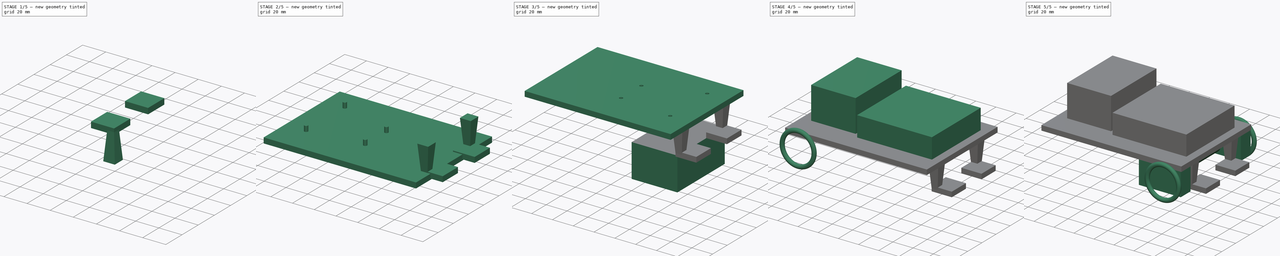
[diagram: build sequence overview — one tinted view per stage of 5, left to right]
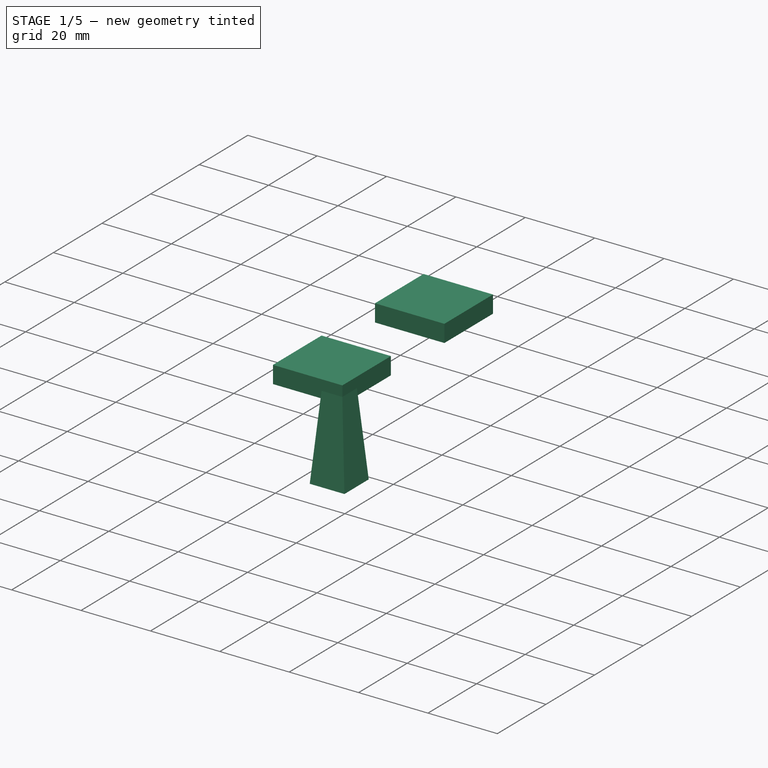
[diagram: stage 1 of 5 — iso view after this stage's code; geometry added in this stage tinted green]
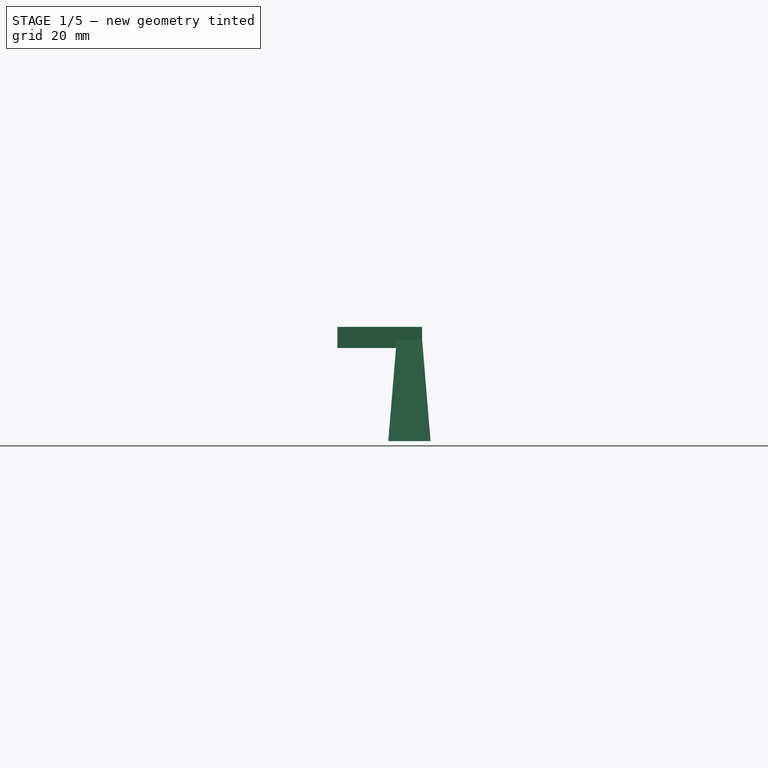
[diagram: stage 1 of 5 — front view after this stage's code; geometry added in this stage tinted green]
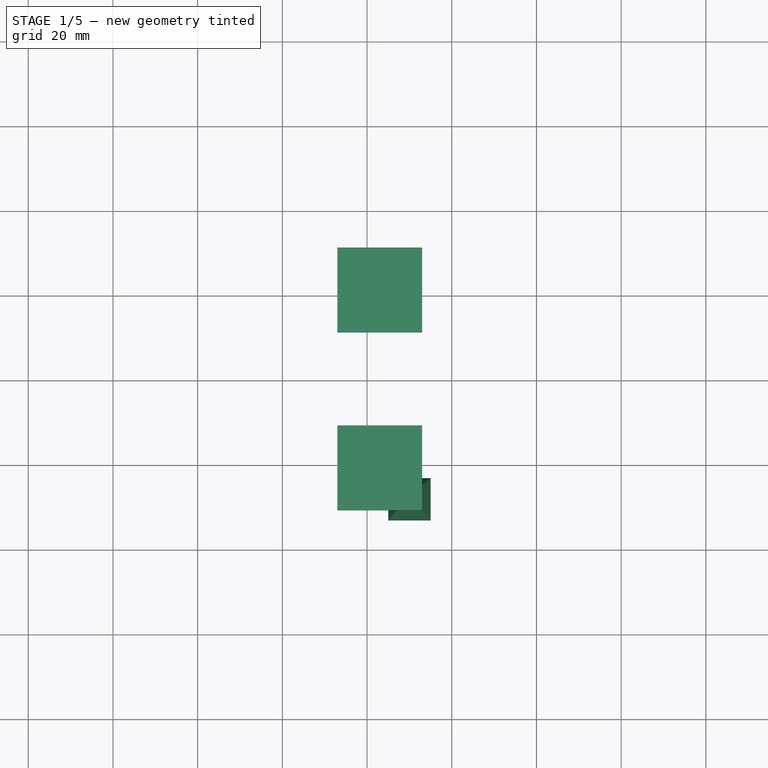
[diagram: stage 1 of 5 — top view after this stage's code; geometry added in this stage tinted green]
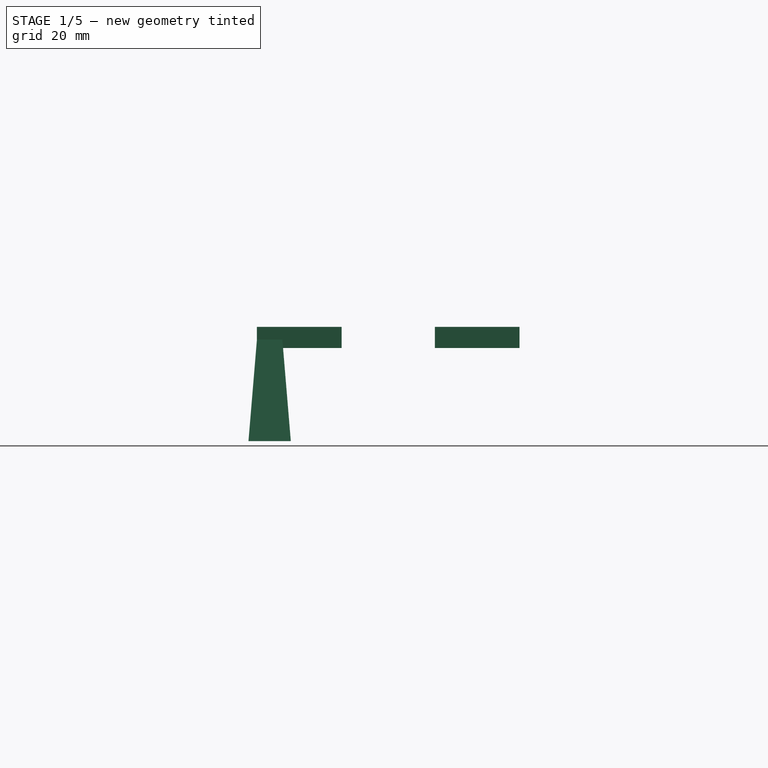
[diagram: stage 1 of 5 — right view after this stage's code; geometry added in this stage tinted green]
FCSTD DOCUMENT  (FreeCAD 0.16R6712 (Git))
Label: proyecto esbozo
License: All rights reserved
LicenseURL: http://en.wikipedia.org/wiki/All_rights_reserved
objects: Part::MultiFuse×7, Sketcher::SketchObject×4, PartDesign::Pad×4, Part::Box×4, App::DocumentObjectGroup×3, Part::Torus×2, Part::Wedge×2, Part::Mirroring×1, Part::Cone×1, Part::Cut×1
note: 30 computed .brp shape members not serialized (recipe doc carries the construction recipe); baked Part::Feature solids carry a one-line shape summary decoded from their .brp

FEATURE [Part::Box] Box  label="Cubo"
  Height = 5
  Length = 20
  Placement = pos=(-27,11,24) rot=(0,0,1;0rad)
  Width = 20
FEATURE [Part::Wedge] Wedge002  label="Cuña002"
  Placement = pos=(-15,33,2) rot=(1,0,0;1.5708rad)
  X2max = 8
  X2min = 2
  Xmax = 10
  Xmin = 0
  Ymax = 24
  Ymin = 0
  Z2max = 8
  Z2min = 2
  Zmax = 10
  Zmin = 0
FEATURE [Part::Box] Box001  label="Cubo001"
  Height = 5
  Length = 20
  Placement = pos=(-27,25,24) rot=(0,0,1;0rad)
  Width = 20
FEATURE [Part::MultiFuse] Fusion002
  Placement = pos=(0,-56,0) rot=(0,0,1;0rad)
  Shapes = -> [Wedge002,Box001]
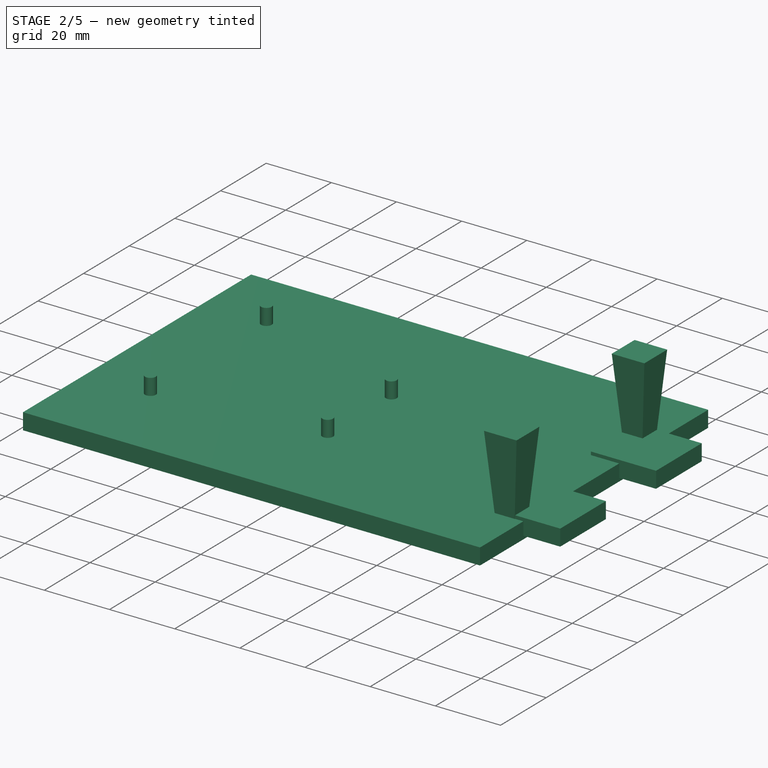
[diagram: stage 2 of 5 — iso view after this stage's code; geometry added in this stage tinted green]
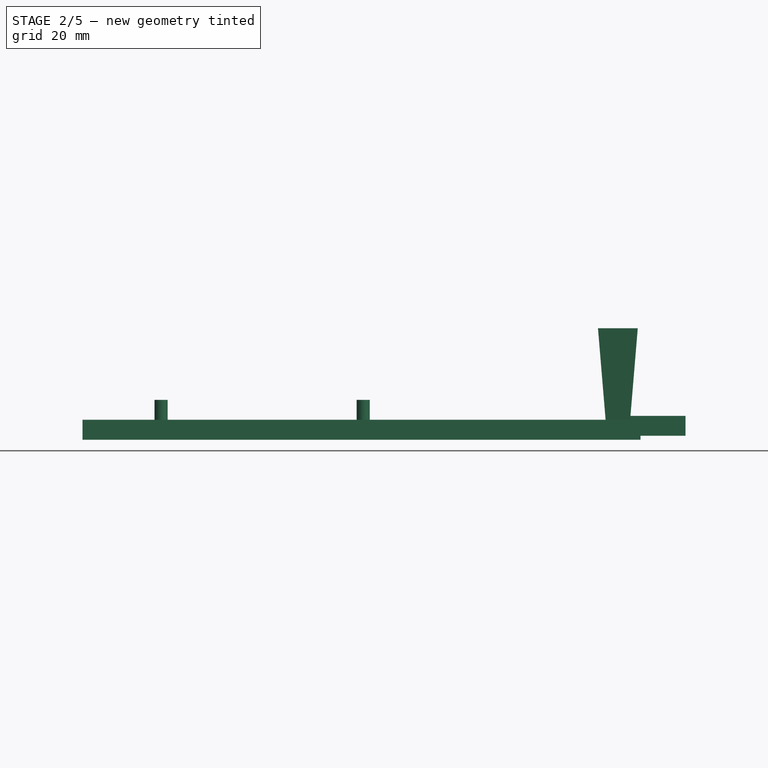
[diagram: stage 2 of 5 — front view after this stage's code; geometry added in this stage tinted green]
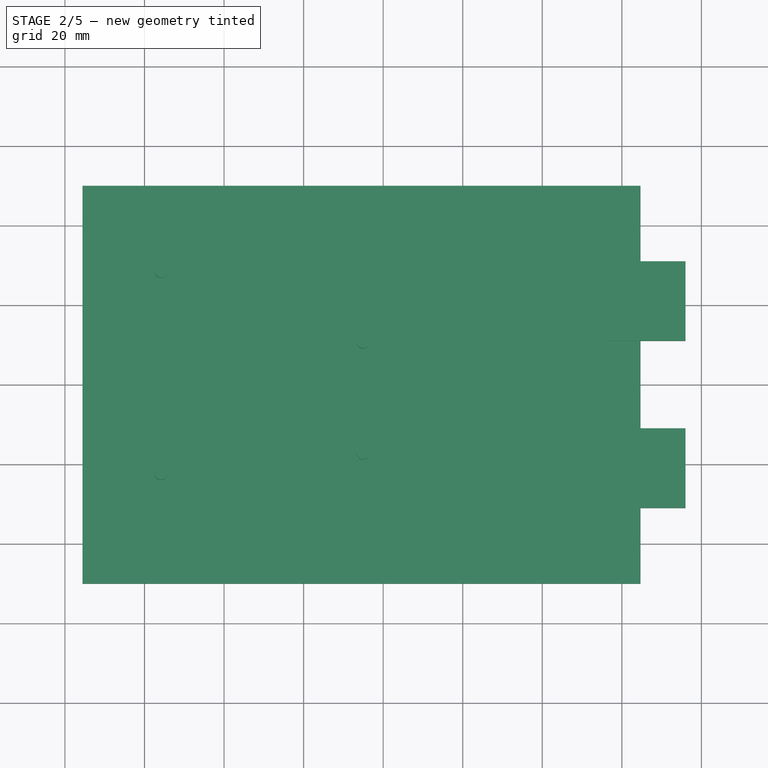
[diagram: stage 2 of 5 — top view after this stage's code; geometry added in this stage tinted green]
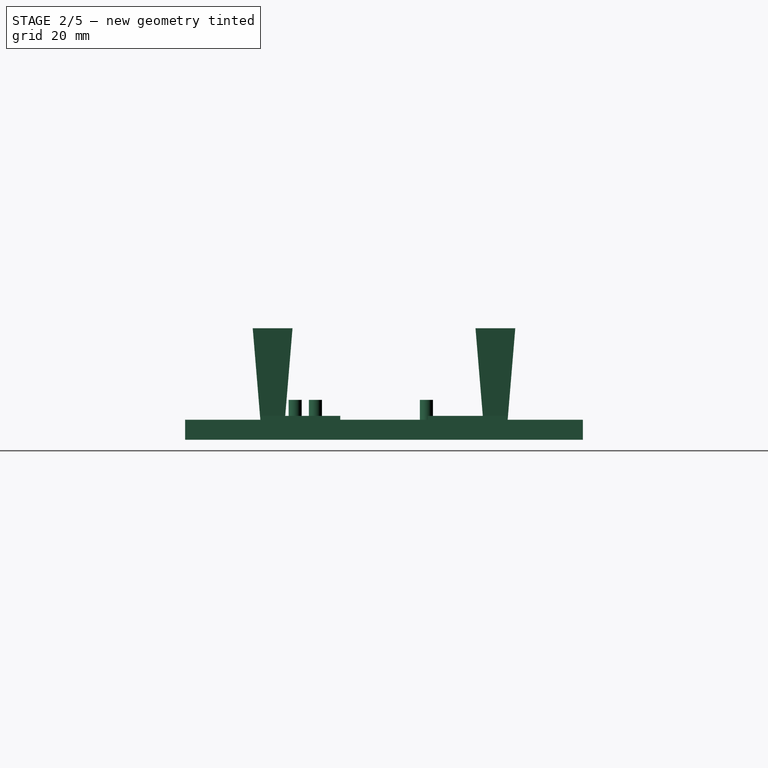
[diagram: stage 2 of 5 — right view after this stage's code; geometry added in this stage tinted green]
FEATURE [PartDesign::Pad] Pad003
  Length = 5
  Length2 = 100
  Sketch = -> Sketch001
  Type = 0
FEATURE [PartDesign::Pad] Pad
  Length = 10
  Length2 = 100
  Sketch = -> Sketch
  Type = 0
FEATURE [Part::Wedge] Wedge001  label="Cuña001"
  Placement = pos=(-15,33,2) rot=(1,0,0;1.5708rad)
  X2max = 8
  X2min = 2
  Xmax = 10
  Xmin = 0
  Ymax = 24
  Ymin = 0
  Z2max = 8
  Z2min = 2
  Zmax = 10
  Zmin = 0
FEATURE [Part::MultiFuse] Fusion001
  Shapes = -> [Wedge001,Box]
FEATURE [Part::MultiFuse] Fusion009  label="portasensores"
  Placement = pos=(109,0,30) rot=(0,1,0;3.14159rad)
  Shapes = -> [Fusion002,Fusion001]
FEATURE [App::DocumentObjectGroup] Grupo002  label="Cuerpo esquema"
  Group = -> [Fusion008,Fusion009]
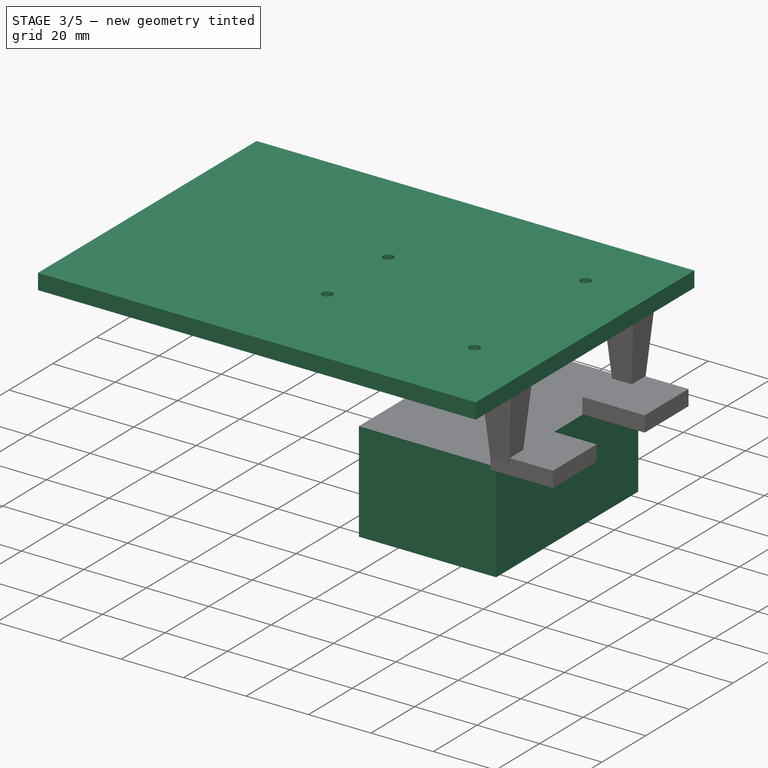
[diagram: stage 3 of 5 — iso view after this stage's code; geometry added in this stage tinted green]
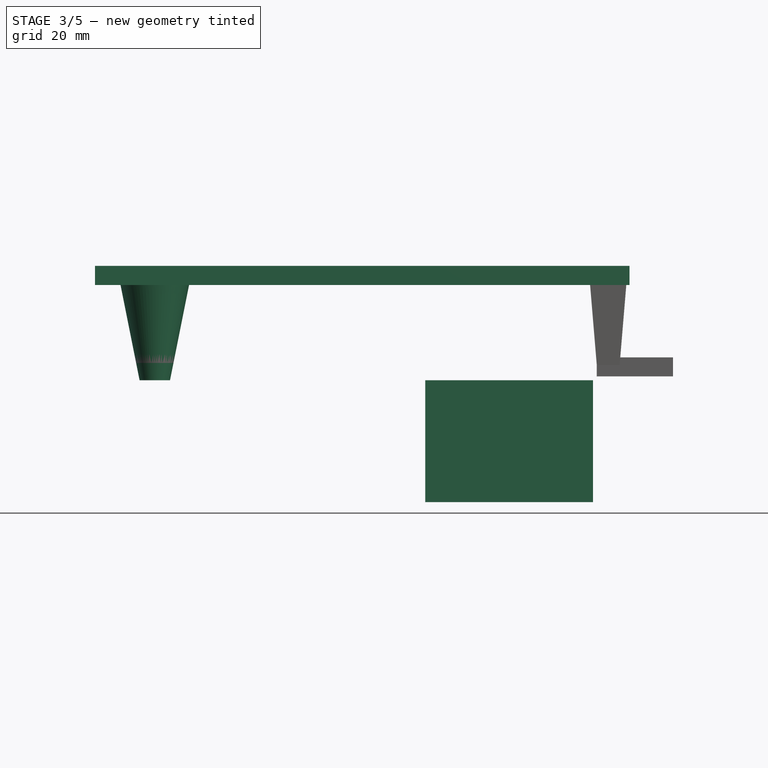
[diagram: stage 3 of 5 — front view after this stage's code; geometry added in this stage tinted green]
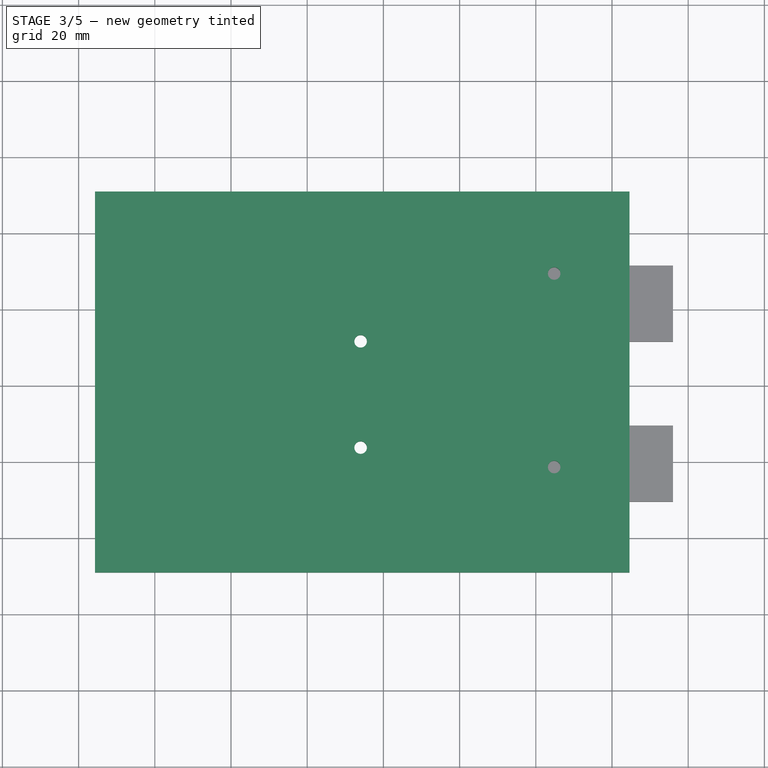
[diagram: stage 3 of 5 — top view after this stage's code; geometry added in this stage tinted green]
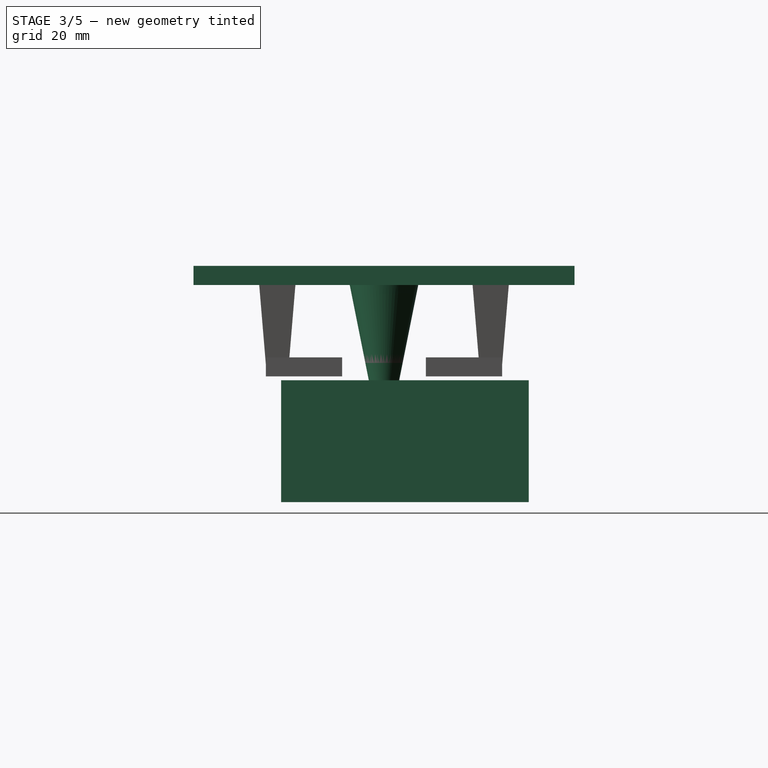
[diagram: stage 3 of 5 — right view after this stage's code; geometry added in this stage tinted green]
FEATURE [Part::Cone] Cone  label="Cono"
  Angle = 360
  Height = 30
  Placement = pos=(109,0,0) rot=(0,0,1;0rad)
  Radius1 = 10
  Radius2 = 4
FEATURE [Part::Cut] Cut
  Base = -> Pad003
  Tool = -> Pad
FEATURE [Part::Box] Box003  label="Cubo003"
  Height = 32
  Length = 44
  Placement = pos=(71,-27,-32) rot=(0,0,1;0rad)
  Width = 65
FEATURE [App::DocumentObjectGroup] Grupo001  label="voumen de la placa"
  Group = -> [Fusion006]
FEATURE [Part::MultiFuse] Fusion008  label="placa"
  Placement = pos=(109,0,30) rot=(0,1,0;3.14159rad)
  Shapes = -> [Cone,Cut]
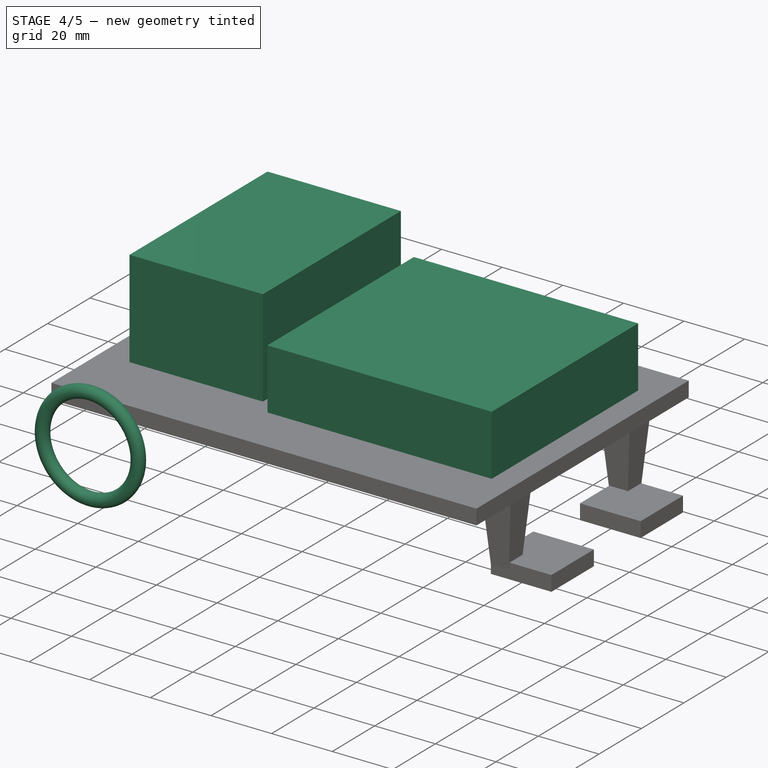
[diagram: stage 4 of 5 — iso view after this stage's code; geometry added in this stage tinted green]
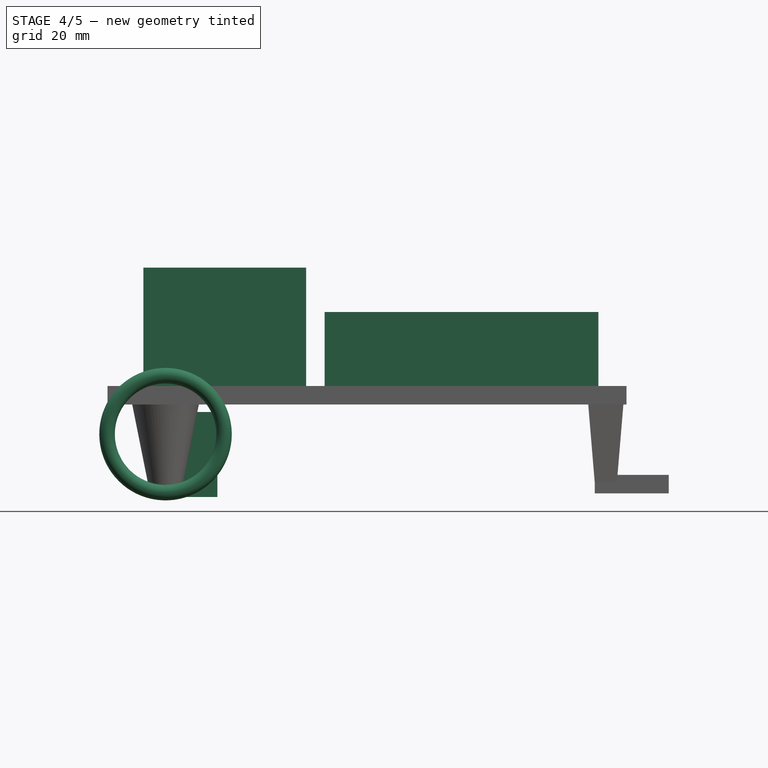
[diagram: stage 4 of 5 — front view after this stage's code; geometry added in this stage tinted green]
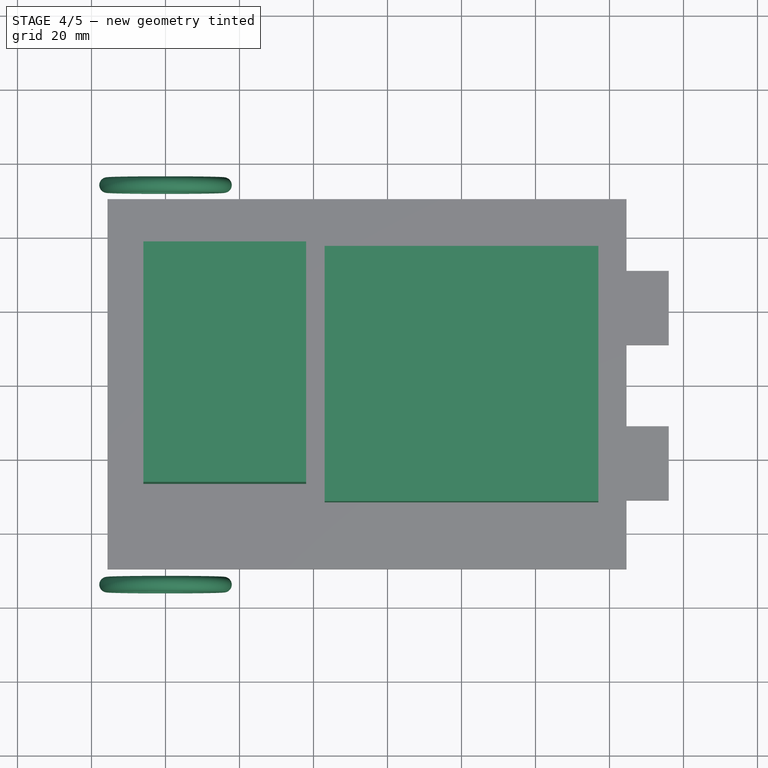
[diagram: stage 4 of 5 — top view after this stage's code; geometry added in this stage tinted green]
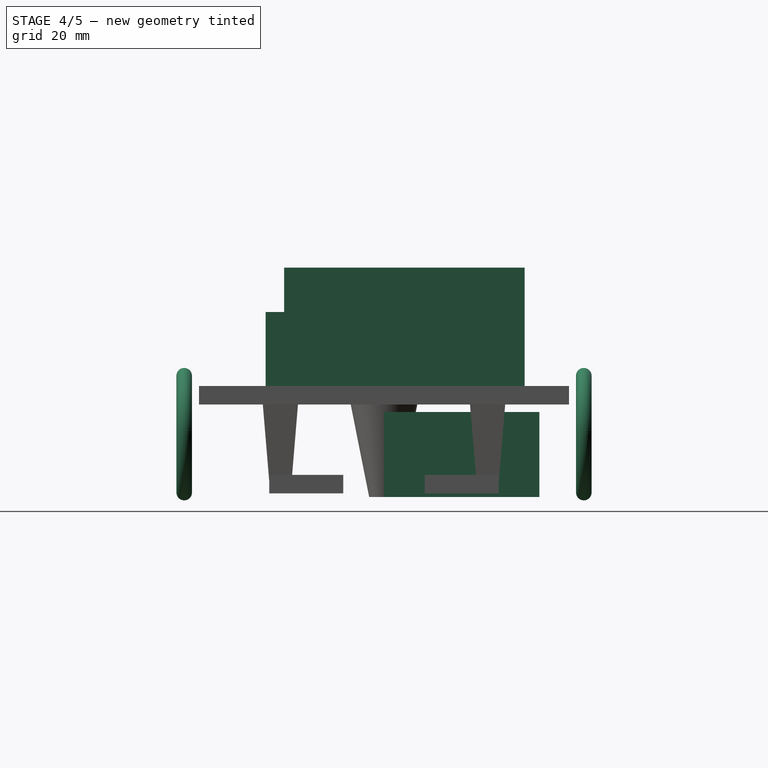
[diagram: stage 4 of 5 — right view after this stage's code; geometry added in this stage tinted green]
FEATURE [Sketcher::SketchObject] Sketch
  sketch-geometry (9):
    g0: LineSegment [constr] StartX=54.9803 StartY=28.4735 StartZ=0 EndX=4.18032 EndY=28.4735 EndZ=0
    g1: LineSegment [constr] StartX=4.18032 StartY=28.4735 StartZ=0 EndX=4.18032 EndY=-22.3265 EndZ=0
    g2: LineSegment [constr] StartX=4.18032 StartY=-22.3265 StartZ=0 EndX=54.9803 EndY=-22.3265 EndZ=0
    g3: LineSegment [constr] StartX=54.9803 StartY=-22.3265 StartZ=0 EndX=54.9803 EndY=28.4735 EndZ=0
    g4: Circle CenterX=4.18032 CenterY=-22.3265 CenterZ=0 NormalX=0 NormalY=0 NormalZ=1 Radius=1.65
    g5: Circle CenterX=4.18032 CenterY=28.4735 CenterZ=0 NormalX=0 NormalY=0 NormalZ=1 Radius=1.65
    g6: Circle CenterX=54.9803 CenterY=-17.2265 CenterZ=0 NormalX=0 NormalY=0 NormalZ=1 Radius=1.65
    g7: Circle CenterX=54.9803 CenterY=10.6735 CenterZ=0 NormalX=0 NormalY=0 NormalZ=1 Radius=1.65
    g8: LineSegment [constr] StartX=54.9803 StartY=10.6735 StartZ=0 EndX=54.9803 EndY=-17.2265 EndZ=0
  constraints (25):
    c: Coincident(g0,g1)
    c: Coincident(g1,g2)
    c: Coincident(g2,g3)
    c: Coincident(g3,g0)
    c: Horizontal(g0)
    c: Horizontal(g2)
    c: Vertical(g3)
    c: Equal(g1,g3)
    c: Equal(g0,g2)
    c: Equal(g0,g1)
    c: Distance(g0) = 50.8
    c: Coincident(g5,g0)
    c: Coincident(g4,g1)
    c: Radius(g4) = 1.65
    c: Radius(g5) = 1.65
    c: Vertical(g8)
    c: PointOnObject(g7,g8)
    c: PointOnObject(g6,g8)
    c: Coincident(g8,g7)
    c: Coincident(g6,g8)
    c: Distance(g8) = 27.9
    c: Distance(g6,g2) = 5.1
    c: Radius(g7) = 1.65
    c: Radius(g6) = 1.65
    c: PointOnObject(g7,g3)
FEATURE [Sketcher::SketchObject] Sketch001
  sketch-geometry (4):
    g0: LineSegment StartX=124.686 StartY=50 StartZ=0 EndX=-15.5795 EndY=50 EndZ=0
    g1: LineSegment StartX=-15.5795 StartY=50 StartZ=0 EndX=-15.5795 EndY=-50 EndZ=0
    g2: LineSegment StartX=-15.5795 StartY=-50 StartZ=0 EndX=124.686 EndY=-50 EndZ=0
    g3: LineSegment StartX=124.686 StartY=-50 StartZ=0 EndX=124.686 EndY=50 EndZ=0
  constraints (10):
    c: Coincident(g0,g1)
    c: Coincident(g1,g2)
    c: Coincident(g2,g3)
    c: Coincident(g3,g0)
    c: Horizontal(g0)
    c: Horizontal(g2)
    c: Vertical(g1)
    c: Vertical(g3)
    c: Symmetric(g0,g1,g-1)
    c: DistanceY(g1,g1) = 100
FEATURE [Sketcher::SketchObject] Sketch002
  sketch-geometry (4):
    g0: LineSegment StartX=0 StartY=0 StartZ=0 EndX=0 EndY=42 EndZ=0
    g1: LineSegment StartX=0 StartY=42 StartZ=0 EndX=14 EndY=42 EndZ=0
    g2: LineSegment StartX=14 StartY=42 StartZ=0 EndX=14 EndY=0 EndZ=0
    g3: LineSegment StartX=0 StartY=0 StartZ=0 EndX=14 EndY=0 EndZ=0
  constraints (12):
    c: Vertical(g0)
    c: PointOnObject(g0,g-2)
    c: Distance(g0) = 42
    c: Horizontal(g1)
    c: Coincident(g1,g2)
    c: Vertical(g2)
    c: Distance(g2,g0) = 14
    c: Coincident(g3,g2)
    c: Horizontal(g3)
    c: Coincident(g1,g0)
    c: Coincident(g3,g0)
    c: Coincident(g0,g-1)
FEATURE [PartDesign::Pad] Pad001
  Length = 23
  Length2 = 100
  Sketch = -> Sketch002
  Type = 0
FEATURE [Part::Torus] Torus  label="Toro"
  Angle1 = -180
  Angle2 = 180
  Angle3 = 360
  Placement = pos=(0,54,17) rot=(1,0,0;1.5708rad)
  Radius1 = 15.8
  Radius2 = 2.1
FEATURE [Part::Torus] Torus001  label="Toro001"
  Angle1 = -180
  Angle2 = 180
  Angle3 = 360
  Placement = pos=(0,-54,17) rot=(1,0,0;1.5708rad)
  Radius1 = 15.8
  Radius2 = 2.1
FEATURE [Part::Box] Box002  label="Cubo002"
  Height = 22
  Length = 74
  Placement = pos=(-8,-32,-20) rot=(0,0,1;0rad)
  Width = 69
FEATURE [App::DocumentObjectGroup] Grupo  label="motor"
  Group = -> [Fusion004]
FEATURE [Part::MultiFuse] Fusion006
  Placement = pos=(109,0,30) rot=(0,1,0;3.14159rad)
  Shapes = -> [Box003,Box002]
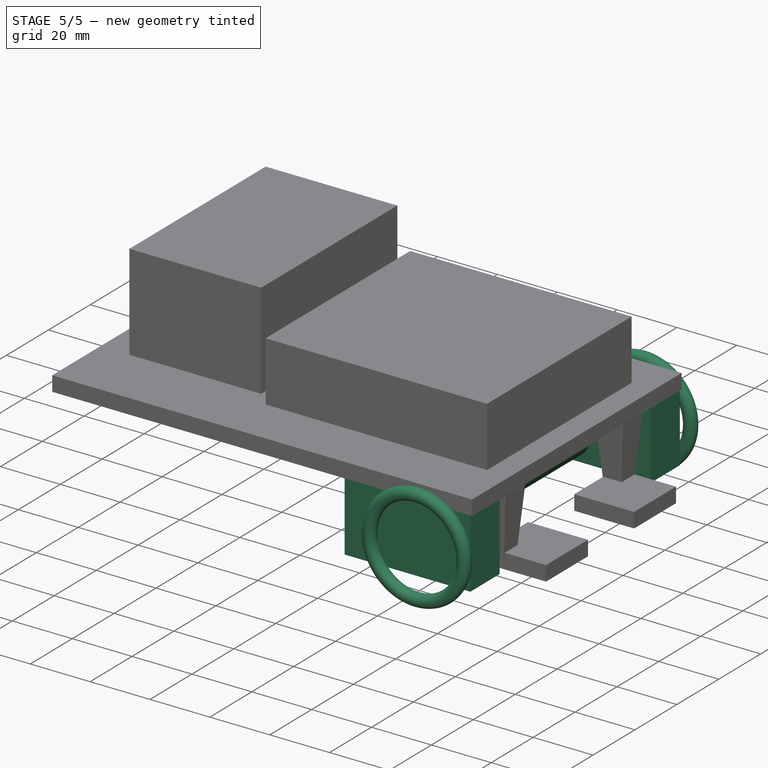
[diagram: stage 5 of 5 — iso view after this stage's code; geometry added in this stage tinted green]
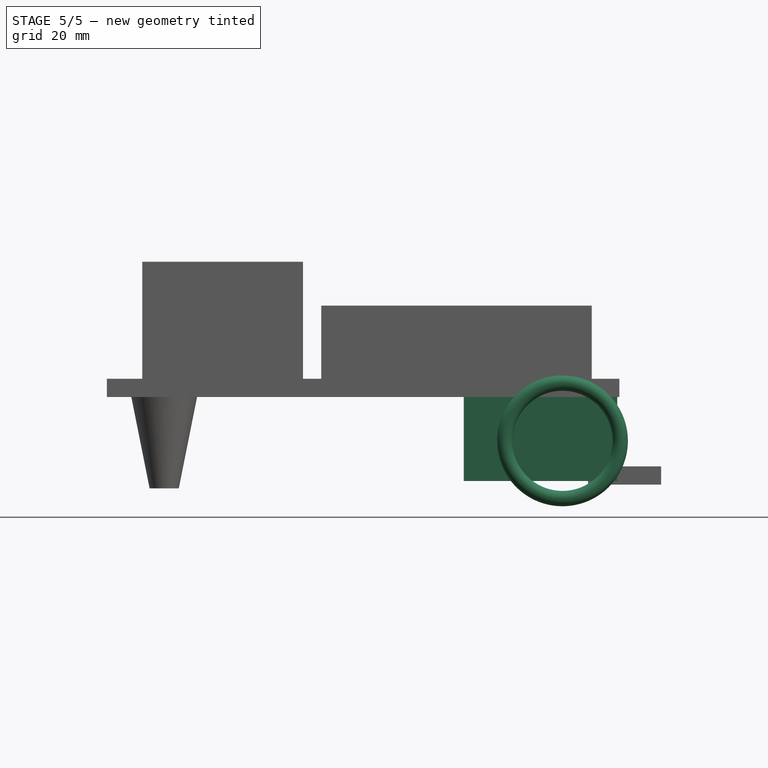
[diagram: stage 5 of 5 — front view after this stage's code; geometry added in this stage tinted green]
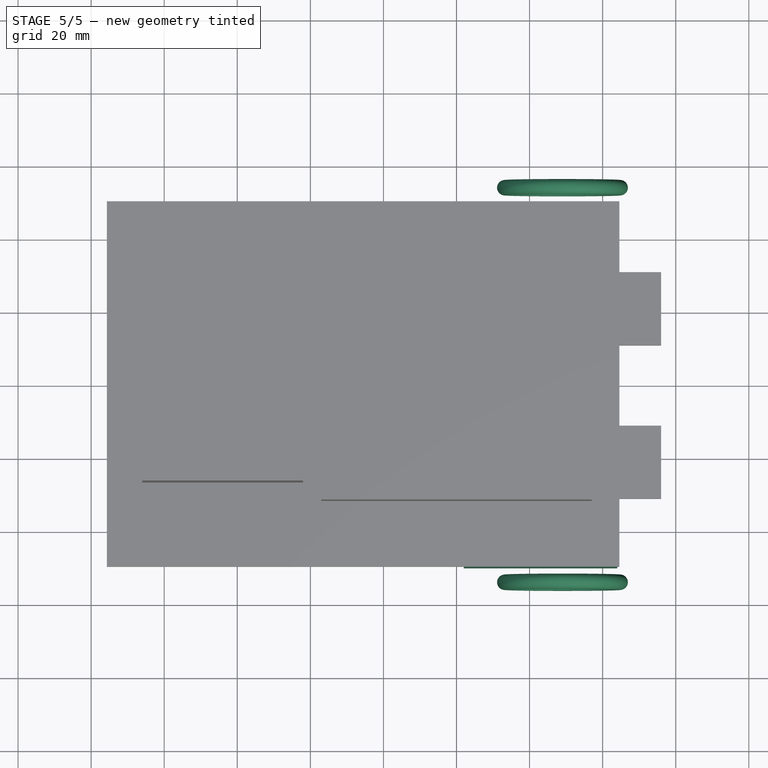
[diagram: stage 5 of 5 — top view after this stage's code; geometry added in this stage tinted green]
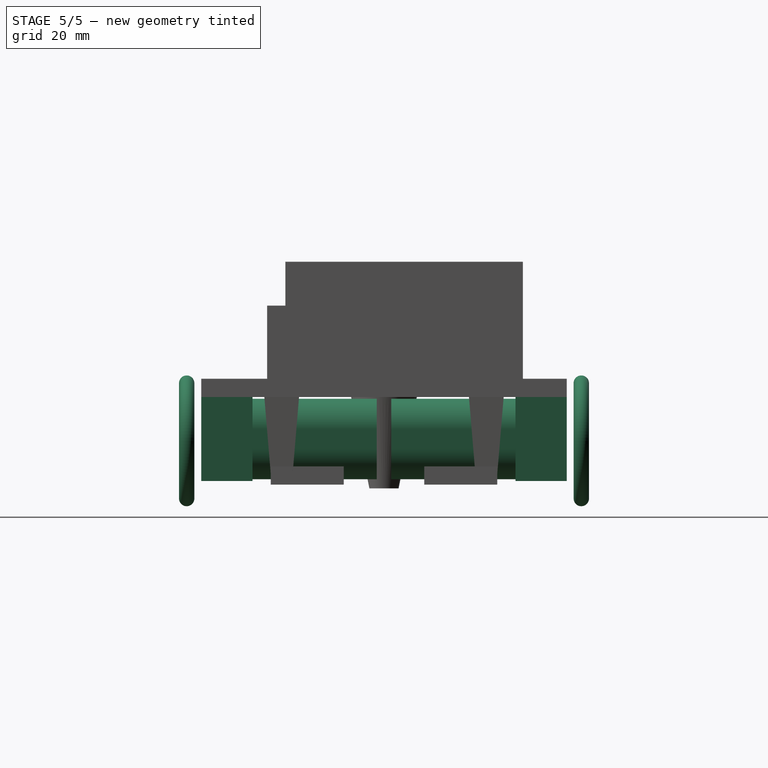
[diagram: stage 5 of 5 — right view after this stage's code; geometry added in this stage tinted green]
FEATURE [Sketcher::SketchObject] Sketch003
  Placement = pos=(14,0,0) rot=(0.57735,0.57735,0.57735;2.0944rad)
  Support = -> Pad001 [Face3]
  sketch-geometry (10):
    g0: LineSegment StartX=8.37446 StartY=0.5 StartZ=0 EndX=13.6255 EndY=0.5 EndZ=0
    g1: LineSegment StartX=22 StartY=8.87446 StartZ=0 EndX=22 EndY=14.1255 EndZ=0
    g2: LineSegment StartX=13.6255 StartY=22.5 StartZ=0 EndX=8.37446 EndY=22.5 EndZ=0
    g3: LineSegment StartX=0 StartY=14.1255 StartZ=0 EndX=0 EndY=8.87446 EndZ=0
    g4: ArcOfCircle CenterX=8.37446 CenterY=14.1255 CenterZ=0 NormalX=0 NormalY=0 NormalZ=1 Radius=8.37446 StartAngle=1.5708 EndAngle=3.14159
    g5: ArcOfCircle CenterX=13.6255 CenterY=14.1255 CenterZ=0 NormalX=0 NormalY=0 NormalZ=1 Radius=8.37446 StartAngle=0 EndAngle=1.5708
    g6: ArcOfCircle CenterX=8.37446 CenterY=8.87446 CenterZ=0 NormalX=0 NormalY=0 NormalZ=1 Radius=8.37446 StartAngle=3.14159 EndAngle=4.71239
    g7: ArcOfCircle CenterX=13.6255 CenterY=8.87446 CenterZ=0 NormalX=0 NormalY=0 NormalZ=1 Radius=8.37446 StartAngle=4.71239 EndAngle=6.28319
    g8: LineSegment [constr] StartX=-6.11996 StartY=14.1255 StartZ=0 EndX=32.8767 EndY=14.1255 EndZ=0
    g9: LineSegment [constr] StartX=-4.85178 StartY=8.87446 StartZ=0 EndX=29.1174 EndY=8.87446 EndZ=0
  constraints (24):
    c: Horizontal(g0)
    c: Horizontal(g2)
    c: Vertical(g1)
    c: Vertical(g3)
    c: Equal(g2,g1)
    c: Tangent(g2,g4) = -1.5708
    c: Tangent(g3,g4) = -1.5708
    c: Tangent(g1,g5) = -1.5708
    c: Tangent(g2,g5) = -1.5708
    c: Tangent(g0,g6) = -1.5708
    c: Tangent(g3,g6) = -1.5708
    c: Tangent(g0,g7) = -1.5708
    c: Tangent(g1,g7) = -1.5708
    c: Equal(g4,g7)
    c: Distance(g3,g1) = 22
    c: Equal(g1,g3)
    c: Equal(g2,g0)
    c: Horizontal(g8)
    c: PointOnObject(g3,g8)
    c: PointOnObject(g1,g8)
    c: Horizontal(g9)
    c: PointOnObject(g3,g9)
    c: DistanceY(g-1,g0) = 0.5
    c: PointOnObject(g3,g-2)
FEATURE [PartDesign::Pad] Pad002
  Length = 34
  Length2 = 100
  Sketch = -> Sketch003
  Type = 0
FEATURE [Part::MultiFuse] Fusion
  Placement = pos=(27,-50,5) rot=(0,0,1;1.5708rad)
  Shapes = -> [Pad001,Pad002]
FEATURE [Part::Mirroring] Part__Mirroring  label="Fusion (Mirror #1)"
  Base = (24,0,0)
  Normal = (0,1,0)
  Source = -> Fusion
FEATURE [Part::MultiFuse] Fusion004  label="motores"
  Placement = pos=(109,0,30) rot=(0,1,0;3.14159rad)
  Shapes = -> [Torus001,Torus,Part__Mirroring,Fusion]
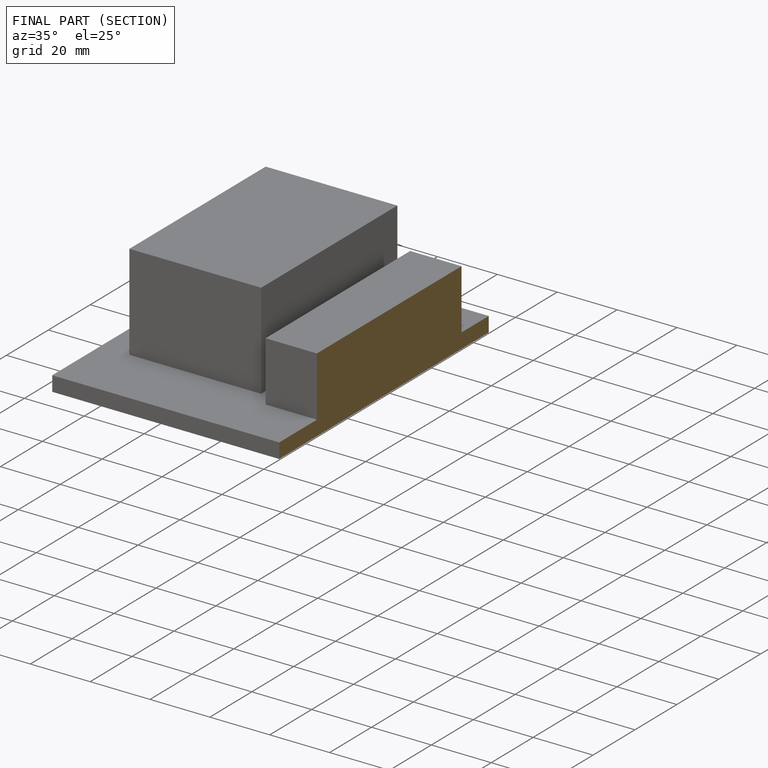
[diagram: finished part — half-section view (interior)]
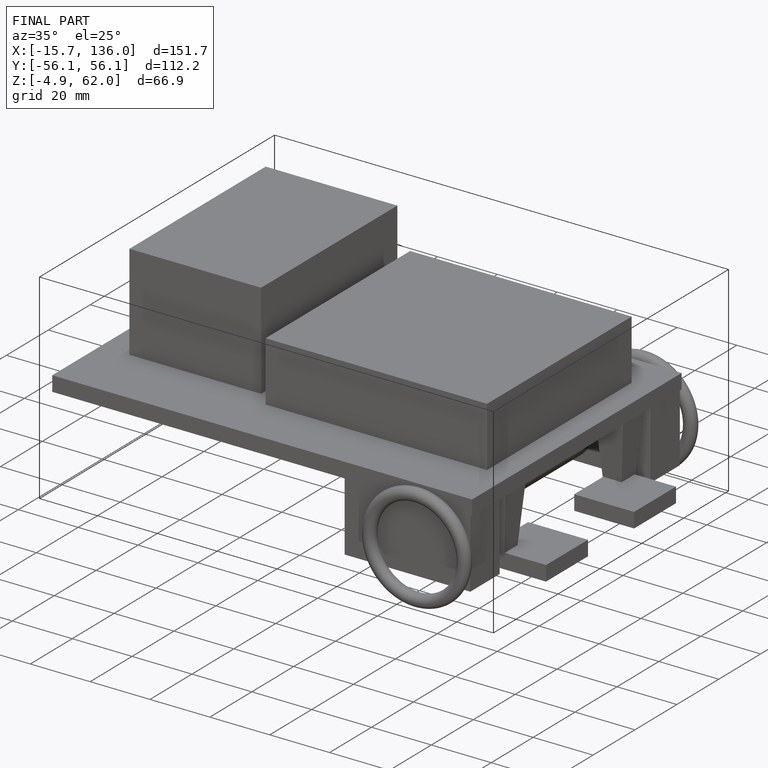
[diagram: finished part — iso view with bounding-box wireframe]
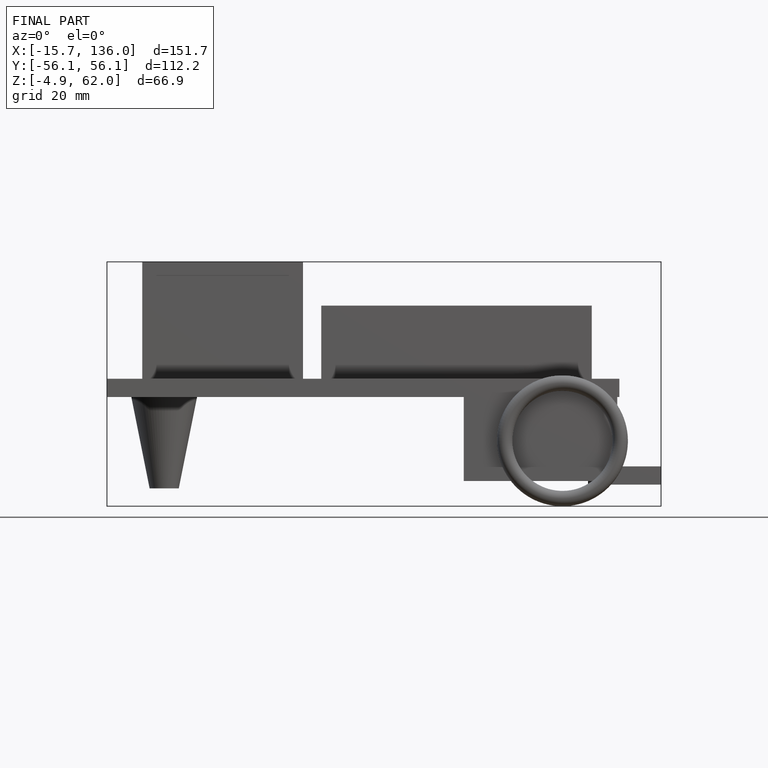
[diagram: finished part — front view with bounding-box wireframe]
